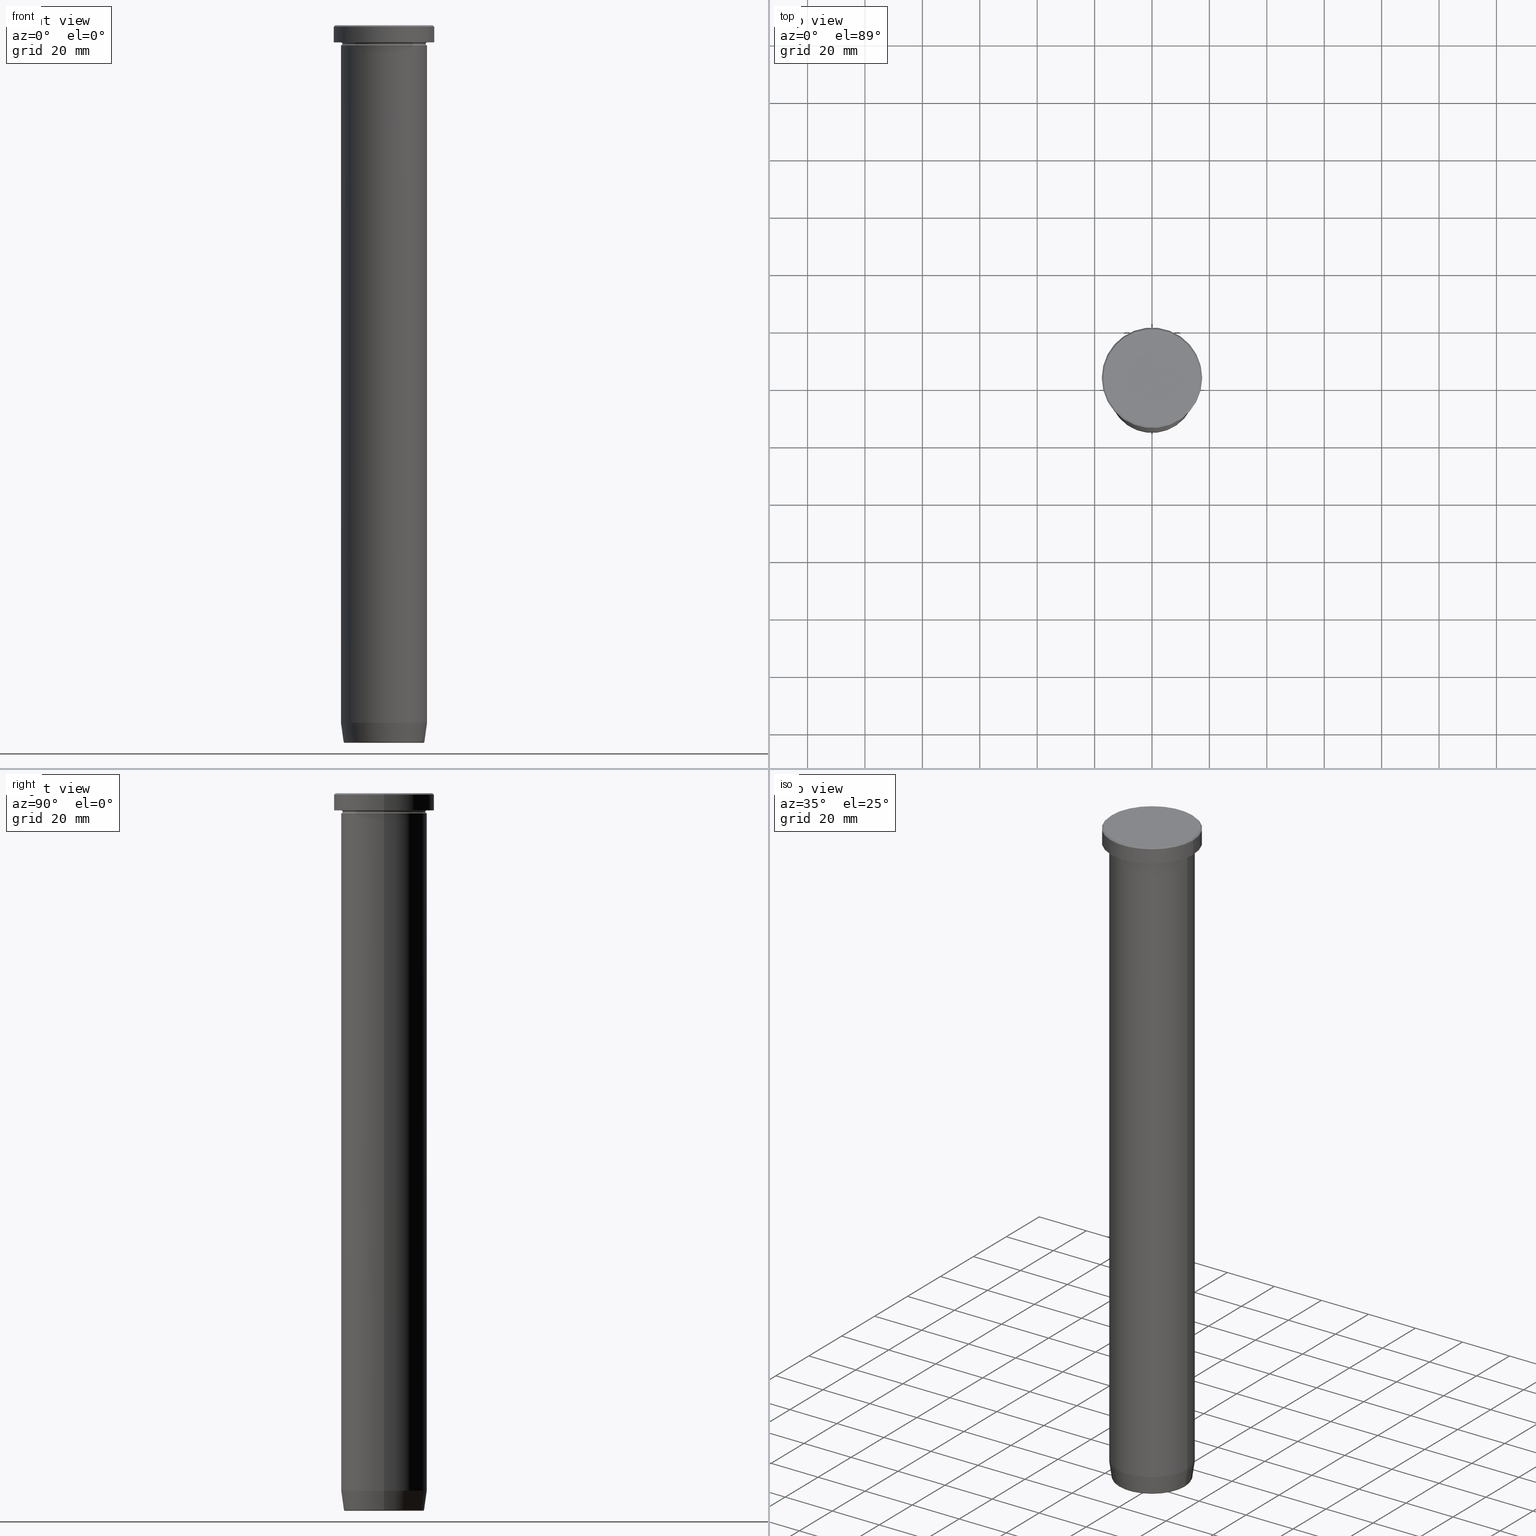
[diagram: canonical four-view strip — front | top / right | iso, engineering-drawing reading convention]
A machine part, canonical four-view strip (front | top / right | iso — engineering-drawing reading convention). The complete STEP part file that produces these views, byte-faithful:
ISO-10303-21;
HEADER;
FILE_DESCRIPTION (( 'STEP AP203' ),
    '1' );
FILE_NAME ('8057.STEP',
    '2024-01-02T17:49:42',
    ( '' ),
    ( '' ),
    'SwSTEP 2.0',
    'SolidWorks 2019',
    '' );
FILE_SCHEMA (( 'CONFIG_CONTROL_DESIGN' ));
ENDSEC;

DATA;
#1 = VECTOR ( 'NONE', #356, 1000.000000000000000 ) ;
#2 = PRODUCT_DEFINITION_FORMATION_WITH_SPECIFIED_SOURCE ( 'LIBOVOLN�', '', #364, .NOT_KNOWN. ) ;
#3 = EDGE_CURVE ( 'NONE', #287, #335, #157, .T. ) ;
#4 = ORIENTED_EDGE ( 'NONE', *, *, #430, .T. ) ;
#5 = FACE_OUTER_BOUND ( 'NONE', #115, .T. ) ;
#6 = FACE_OUTER_BOUND ( 'NONE', #298, .T. ) ;
#7 = DIRECTION ( 'NONE',  ( -0.000000000000000000, -0.000000000000000000, 1.000000000000000000 ) ) ;
#8 = DIRECTION ( 'NONE',  ( 0.000000000000000000, 0.000000000000000000, -1.000000000000000000 ) ) ;
#9 = CARTESIAN_POINT ( 'NONE',  ( 0.000000000000000000, 0.000000000000000000, -249.5000000000000000 ) ) ;
#10 = AXIS2_PLACEMENT_3D ( 'NONE', #431, #29, #205 ) ;
#11 = AXIS2_PLACEMENT_3D ( 'NONE', #405, #366, #176 ) ;
#12 = CARTESIAN_POINT ( 'NONE',  ( 0.000000000000000000, 0.000000000000000000, -6.499999999999999112 ) ) ;
#13 = EDGE_LOOP ( 'NONE', ( #458, #521, #195, #387 ) ) ;
#14 = DIRECTION ( 'NONE',  ( -0.000000000000000000, -0.000000000000000000, 1.000000000000000000 ) ) ;
#15 = PRODUCT_DEFINITION ( 'NEZN�M�', '', #2, #577 ) ;
#16 = DIRECTION ( 'NONE',  ( 1.000000000000000000, 0.000000000000000000, 0.000000000000000000 ) ) ;
#17 = CARTESIAN_POINT ( 'NONE',  ( -15.00000000000000000, 1.836970198721029589E-15, 0.000000000000000000 ) ) ;
#18 = ORIENTED_EDGE ( 'NONE', *, *, #415, .T. ) ;
#19 = FACE_OUTER_BOUND ( 'NONE', #537, .T. ) ;
#20 = ADVANCED_BREP_SHAPE_REPRESENTATION ( '8057', ( #138, #528, #550 ), #417 ) ;
#21 = EDGE_LOOP ( 'NONE', ( #573, #477 ) ) ;
#22 = DIRECTION ( 'NONE',  ( 1.000000000000000000, 0.000000000000000000, 0.000000000000000000 ) ) ;
#23 = ORIENTED_EDGE ( 'NONE', *, *, #91, .F. ) ;
#24 = AXIS2_PLACEMENT_3D ( 'NONE', #390, #344, #525 ) ;
#25 = DIRECTION ( 'NONE',  ( 1.000000000000000000, 0.000000000000000000, 0.000000000000000000 ) ) ;
#26 = CIRCLE ( 'NONE', #98, 0.5000000000000004441 ) ;
#27 = EDGE_LOOP ( 'NONE', ( #469, #555 ) ) ;
#28 = EDGE_CURVE ( 'NONE', #524, #381, #274, .T. ) ;
#29 = DIRECTION ( 'NONE',  ( -0.000000000000000000, -1.000000000000000000, -0.000000000000000000 ) ) ;
#30 = CYLINDRICAL_SURFACE ( 'NONE', #112, 15.00000000000000000 ) ;
#31 = CARTESIAN_POINT ( 'NONE',  ( 0.000000000000000000, 0.000000000000000000, -6.999999999999999112 ) ) ;
#32 = DIRECTION ( 'NONE',  ( 0.1391731009600661317, 0.000000000000000000, 0.9902680687415702510 ) ) ;
#33 = DIRECTION ( 'NONE',  ( 0.000000000000000000, 0.000000000000000000, -1.000000000000000000 ) ) ;
#34 = CARTESIAN_POINT ( 'NONE',  ( 0.000000000000000000, 0.000000000000000000, -250.0000000000000000 ) ) ;
#35 = VECTOR ( 'NONE', #14, 1000.000000000000000 ) ;
#36 = EDGE_LOOP ( 'NONE', ( #210, #384, #512, #435 ) ) ;
#37 = APPROVAL_PERSON_ORGANIZATION ( #369, #466, #58 ) ;
#38 = EDGE_CURVE ( 'NONE', #255, #339, #595, .T. ) ;
#39 = DIRECTION ( 'NONE',  ( -0.000000000000000000, -0.000000000000000000, 1.000000000000000000 ) ) ;
#40 = DATE_AND_TIME ( #564, #275 ) ;
#41 = DIRECTION ( 'NONE',  ( 1.000000000000000000, 0.000000000000000000, 0.000000000000000000 ) ) ;
#42 = CIRCLE ( 'NONE', #24, 14.49999999999999822 ) ;
#43 = EDGE_CURVE ( 'NONE', #339, #255, #508, .T. ) ;
#44 = AXIS2_PLACEMENT_3D ( 'NONE', #258, #451, #531 ) ;
#45 = DIRECTION ( 'NONE',  ( 0.000000000000000000, 0.000000000000000000, -1.000000000000000000 ) ) ;
#46 = EDGE_CURVE ( 'NONE', #59, #444, #391, .T. ) ;
#47 = COORDINATED_UNIVERSAL_TIME_OFFSET ( 1, 0, .AHEAD. ) ;
#48 = TOROIDAL_SURFACE ( 'NONE', #332, 13.58157078817513863, 0.5000000000000000000 ) ;
#49 = CIRCLE ( 'NONE', #370, 14.49999999999999822 ) ;
#50 = AXIS2_PLACEMENT_3D ( 'NONE', #546, #45, #226 ) ;
#51 = CC_DESIGN_PERSON_AND_ORGANIZATION_ASSIGNMENT ( #545, #599, ( #2 ) ) ;
#52 = FACE_OUTER_BOUND ( 'NONE', #300, .T. ) ;
#53 = DIRECTION ( 'NONE',  ( -1.000000000000000000, 0.000000000000000000, 0.000000000000000000 ) ) ;
#54 = DIRECTION ( 'NONE',  ( 1.000000000000000000, 0.000000000000000000, 0.000000000000000000 ) ) ;
#55 = CARTESIAN_POINT ( 'NONE',  ( -14.07670482254592059, 1.780434674534163799E-15, -249.5695865504800679 ) ) ;
#56 = ORIENTED_EDGE ( 'NONE', *, *, #234, .T. ) ;
#57 = EDGE_LOOP ( 'NONE', ( #313, #171 ) ) ;
#58 = APPROVAL_ROLE ( '' ) ;
#59 = VERTEX_POINT ( 'NONE', #439 ) ;
#60 = ADVANCED_FACE ( 'NONE', ( #19 ), #377, .T. ) ;
#61 = VECTOR ( 'NONE', #372, 1000.000000000000000 ) ;
#62 = EDGE_LOOP ( 'NONE', ( #448, #389, #202, #380 ) ) ;
#63 = ORIENTED_EDGE ( 'NONE', *, *, #139, .F. ) ;
#64 = ORIENTED_EDGE ( 'NONE', *, *, #569, .F. ) ;
#65 = ORIENTED_EDGE ( 'NONE', *, *, #183, .T. ) ;
#66 = FACE_OUTER_BOUND ( 'NONE', #78, .T. ) ;
#67 = ADVANCED_FACE ( 'NONE', ( #159 ), #292, .F. ) ;
#68 = CARTESIAN_POINT ( 'NONE',  ( 0.000000000000000000, 0.000000000000000000, -36.00000000000000000 ) ) ;
#69 = DIRECTION ( 'NONE',  ( 0.000000000000000000, 0.000000000000000000, -1.000000000000000000 ) ) ;
#70 = ORIENTED_EDGE ( 'NONE', *, *, #83, .F. ) ;
#71 = DIRECTION ( 'NONE',  ( 1.000000000000000000, 0.000000000000000000, 0.000000000000000000 ) ) ;
#72 = FACE_OUTER_BOUND ( 'NONE', #357, .T. ) ;
#73 = CIRCLE ( 'NONE', #447, 0.5000000000000004441 ) ;
#74 = CARTESIAN_POINT ( 'NONE',  ( 14.01621415708325280, 0.000000000000000000, -250.0000000000000000 ) ) ;
#75 = AXIS2_PLACEMENT_3D ( 'NONE', #427, #8, #185 ) ;
#76 = DIRECTION ( 'NONE',  ( -0.000000000000000000, -0.000000000000000000, 1.000000000000000000 ) ) ;
#77 = DIRECTION ( 'NONE',  ( -0.000000000000000000, -0.000000000000000000, 1.000000000000000000 ) ) ;
#78 = EDGE_LOOP ( 'NONE', ( #118, #346, #288, #82 ) ) ;
#79 = DIRECTION ( 'NONE',  ( 1.000000000000000000, 0.000000000000000000, 0.000000000000000000 ) ) ;
#80 = CARTESIAN_POINT ( 'NONE',  ( 0.000000000000000000, 0.000000000000000000, -243.0000000000000000 ) ) ;
#81 = CARTESIAN_POINT ( 'NONE',  ( 0.000000000000000000, 0.000000000000000000, 0.000000000000000000 ) ) ;
#82 = ORIENTED_EDGE ( 'NONE', *, *, #506, .T. ) ;
#83 = EDGE_CURVE ( 'NONE', #571, #108, #587, .T. ) ;
#84 = AXIS2_PLACEMENT_3D ( 'NONE', #566, #196, #340 ) ;
#85 = CARTESIAN_POINT ( 'NONE',  ( -13.58157078817513863, 1.663262719313187755E-15, -249.5000000000000000 ) ) ;
#86 = AXIS2_PLACEMENT_3D ( 'NONE', #400, #213, #168 ) ;
#87 = DIRECTION ( 'NONE',  ( 1.000000000000000000, 0.000000000000000000, 0.000000000000000000 ) ) ;
#88 = PERSON_AND_ORGANIZATION_ROLE ( 'design_supplier' ) ;
#89 = FACE_OUTER_BOUND ( 'NONE', #247, .T. ) ;
#90 = ORIENTED_EDGE ( 'NONE', *, *, #457, .F. ) ;
#91 = EDGE_CURVE ( 'NONE', #474, #339, #398, .T. ) ;
#92 = AXIS2_PLACEMENT_3D ( 'NONE', #34, #501, #87 ) ;
#93 = APPLICATION_PROTOCOL_DEFINITION ( 'international standard', 'config_control_design', 1994, #578 ) ;
#94 = MECHANICAL_CONTEXT ( 'NONE', #578, 'mechanical' ) ;
#95 = COORDINATED_UNIVERSAL_TIME_OFFSET ( 1, 0, .AHEAD. ) ;
#96 = ADVANCED_FACE ( 'NONE', ( #493 ), #305, .T. ) ;
#97 = AXIS2_PLACEMENT_3D ( 'NONE', #236, #483, #245 ) ;
#98 = AXIS2_PLACEMENT_3D ( 'NONE', #452, #175, #217 ) ;
#99 = DIRECTION ( 'NONE',  ( -0.000000000000000000, -0.000000000000000000, 1.000000000000000000 ) ) ;
#100 = DIRECTION ( 'NONE',  ( -0.000000000000000000, -0.000000000000000000, 1.000000000000000000 ) ) ;
#101 = ORIENTED_EDGE ( 'NONE', *, *, #83, .T. ) ;
#102 = CARTESIAN_POINT ( 'NONE',  ( 0.000000000000000000, 0.000000000000000000, 0.000000000000000000 ) ) ;
#103 = FACE_OUTER_BOUND ( 'NONE', #239, .T. ) ;
#104 = EDGE_CURVE ( 'NONE', #108, #295, #416, .T. ) ;
#105 = ORIENTED_EDGE ( 'NONE', *, *, #211, .T. ) ;
#106 = ORIENTED_EDGE ( 'NONE', *, *, #462, .T. ) ;
#107 = DIRECTION ( 'NONE',  ( -0.000000000000000000, -0.000000000000000000, 1.000000000000000000 ) ) ;
#108 = VERTEX_POINT ( 'NONE', #442 ) ;
#109 = ORIENTED_EDGE ( 'NONE', *, *, #358, .F. ) ;
#110 = CONICAL_SURFACE ( 'NONE', #540, 14.01621415708325280, 0.1396263401595470577 ) ;
#111 = ORIENTED_EDGE ( 'NONE', *, *, #302, .F. ) ;
#112 = AXIS2_PLACEMENT_3D ( 'NONE', #212, #404, #206 ) ;
#113 = FACE_OUTER_BOUND ( 'NONE', #334, .T. ) ;
#114 = ORIENTED_EDGE ( 'NONE', *, *, #302, .T. ) ;
#115 = EDGE_LOOP ( 'NONE', ( #114, #190, #374, #70 ) ) ;
#116 = EDGE_CURVE ( 'NONE', #59, #341, #290, .T. ) ;
#117 = CARTESIAN_POINT ( 'NONE',  ( 0.000000000000000000, 0.000000000000000000, 0.000000000000000000 ) ) ;
#118 = ORIENTED_EDGE ( 'NONE', *, *, #173, .F. ) ;
#119 = APPROVAL ( #187, 'NEUR�EN�' ) ;
#120 = CARTESIAN_POINT ( 'NONE',  ( 0.000000000000000000, 0.000000000000000000, -249.5695865504800679 ) ) ;
#121 = DATE_TIME_ROLE ( 'creation_date' ) ;
#122 = CYLINDRICAL_SURFACE ( 'NONE', #408, 17.50000000000000000 ) ;
#123 = VECTOR ( 'NONE', #395, 1000.000000000000000 ) ;
#124 = CARTESIAN_POINT ( 'NONE',  ( 0.000000000000000000, 0.000000000000000000, -6.499999999999999112 ) ) ;
#125 = DIRECTION ( 'NONE',  ( 1.000000000000000000, 0.000000000000000000, 0.000000000000000000 ) ) ;
#126 = CIRCLE ( 'NONE', #223, 15.00000000000000000 ) ;
#127 = CYLINDRICAL_SURFACE ( 'NONE', #191, 17.50000000000000000 ) ;
#128 = FACE_OUTER_BOUND ( 'NONE', #36, .T. ) ;
#129 = ORIENTED_EDGE ( 'NONE', *, *, #553, .F. ) ;
#130 = EDGE_CURVE ( 'NONE', #381, #355, #189, .T. ) ;
#131 = DIRECTION ( 'NONE',  ( -0.000000000000000000, -0.000000000000000000, 1.000000000000000000 ) ) ;
#132 = CARTESIAN_POINT ( 'NONE',  ( 13.58157078817513863, 0.000000000000000000, -249.5000000000000000 ) ) ;
#133 = CARTESIAN_POINT ( 'NONE',  ( 0.000000000000000000, 0.000000000000000000, -0.5000000000000073275 ) ) ;
#134 = AXIS2_PLACEMENT_3D ( 'NONE', #385, #575, #567 ) ;
#135 = DATE_AND_TIME ( #503, #316 ) ;
#136 = LOCAL_TIME ( 18, 49, 42.00000000000000000, #363 ) ;
#137 = ORIENTED_EDGE ( 'NONE', *, *, #28, .T. ) ;
#138 = MANIFOLD_SOLID_BREP ( 'Zkosen�1', #160 ) ;
#139 = EDGE_CURVE ( 'NONE', #443, #255, #570, .T. ) ;
#140 = PERSON_AND_ORGANIZATION ( #371, #534 ) ;
#141 =( LENGTH_UNIT ( ) NAMED_UNIT ( * ) SI_UNIT ( .MILLI., .METRE. ) );
#142 = SHAPE_DEFINITION_REPRESENTATION ( #593, #20 ) ;
#143 = DIRECTION ( 'NONE',  ( -1.000000000000000000, -1.224646799147349509E-16, 0.000000000000000000 ) ) ;
#144 = VECTOR ( 'NONE', #166, 1000.000000000000000 ) ;
#145 = DATE_AND_TIME ( #470, #361 ) ;
#146 = PERSON_AND_ORGANIZATION ( #371, #534 ) ;
#147 = ADVANCED_FACE ( 'NONE', ( #6 ), #209, .T. ) ;
#148 = ORIENTED_EDGE ( 'NONE', *, *, #500, .F. ) ;
#149 = ORIENTED_EDGE ( 'NONE', *, *, #280, .F. ) ;
#150 = CIRCLE ( 'NONE', #269, 15.00000000000000000 ) ;
#151 = DIRECTION ( 'NONE',  ( -0.000000000000000000, -0.000000000000000000, 1.000000000000000000 ) ) ;
#152 = SECURITY_CLASSIFICATION ( '', '', #507 ) ;
#153 = ADVANCED_FACE ( 'NONE', ( #128 ), #48, .T. ) ;
#154 = ORIENTED_EDGE ( 'NONE', *, *, #177, .T. ) ;
#155 = CARTESIAN_POINT ( 'NONE',  ( 13.58157078817513863, 0.000000000000000000, -250.0000000000000000 ) ) ;
#156 = EDGE_LOOP ( 'NONE', ( #299, #106, #90, #561 ) ) ;
#157 = LINE ( 'NONE', #436, #35 ) ;
#158 = CC_DESIGN_DATE_AND_TIME_ASSIGNMENT ( #145, #121, ( #15 ) ) ;
#159 = FACE_OUTER_BOUND ( 'NONE', #284, .T. ) ;
#160 = CLOSED_SHELL ( 'NONE', ( #338, #475, #67, #494, #188, #393, #147, #314, #582, #293, #365, #598, #96 ) ) ;
#161 = AXIS2_PLACEMENT_3D ( 'NONE', #102, #7, #285 ) ;
#162 = CIRCLE ( 'NONE', #465, 13.58157078817513863 ) ;
#163 = ORIENTED_EDGE ( 'NONE', *, *, #139, .T. ) ;
#164 = DIRECTION ( 'NONE',  ( 0.000000000000000000, 0.000000000000000000, 1.000000000000000000 ) ) ;
#165 = CC_DESIGN_PERSON_AND_ORGANIZATION_ASSIGNMENT ( #146, #88, ( #2 ) ) ;
#166 = DIRECTION ( 'NONE',  ( -0.000000000000000000, -0.000000000000000000, 1.000000000000000000 ) ) ;
#167 = DIRECTION ( 'NONE',  ( -0.000000000000000000, -0.000000000000000000, 1.000000000000000000 ) ) ;
#168 = DIRECTION ( 'NONE',  ( -1.000000000000000000, 0.000000000000000000, 0.000000000000000000 ) ) ;
#169 = DIRECTION ( 'NONE',  ( -1.000000000000000000, 0.000000000000000000, -0.000000000000000000 ) ) ;
#170 = CARTESIAN_POINT ( 'NONE',  ( -15.00000000000000000, 1.836970198721029589E-15, -6.499999999999999112 ) ) ;
#171 = ORIENTED_EDGE ( 'NONE', *, *, #441, .F. ) ;
#172 = CONICAL_SURFACE ( 'NONE', #86, 17.00000000000000000, 0.7853981633974415066 ) ;
#173 = EDGE_CURVE ( 'NONE', #482, #355, #588, .T. ) ;
#174 = APPROVAL_PERSON_ORGANIZATION ( #414, #373, #321 ) ;
#175 = DIRECTION ( 'NONE',  ( 0.000000000000000000, -1.000000000000000000, 0.000000000000000000 ) ) ;
#176 = DIRECTION ( 'NONE',  ( 1.000000000000000000, 0.000000000000000000, 0.000000000000000000 ) ) ;
#177 = EDGE_CURVE ( 'NONE', #571, #341, #73, .T. ) ;
#178 = APPROVAL_DATE_TIME ( #135, #373 ) ;
#179 = TOROIDAL_SURFACE ( 'NONE', #378, 15.00000000000000000, 0.5000000000000000000 ) ;
#180 = DIRECTION ( 'NONE',  ( 1.000000000000000000, 0.000000000000000000, 0.000000000000000000 ) ) ;
#181 =( NAMED_UNIT ( * ) PLANE_ANGLE_UNIT ( ) SI_UNIT ( $, .RADIAN. ) );
#182 = APPROVAL_DATE_TIME ( #229, #119 ) ;
#183 = EDGE_CURVE ( 'NONE', #192, #392, #498, .T. ) ;
#184 = APPLICATION_PROTOCOL_DEFINITION ( 'international standard', 'config_control_design', 1994, #329 ) ;
#185 = DIRECTION ( 'NONE',  ( -1.000000000000000000, 0.000000000000000000, -0.000000000000000000 ) ) ;
#186 = AXIS2_PLACEMENT_3D ( 'NONE', #124, #33, #464 ) ;
#187 = APPROVAL_STATUS ( 'not_yet_approved' ) ;
#188 = ADVANCED_FACE ( 'NONE', ( #254 ), #122, .T. ) ;
#189 = LINE ( 'NONE', #386, #576 ) ;
#190 = ORIENTED_EDGE ( 'NONE', *, *, #246, .T. ) ;
#191 = AXIS2_PLACEMENT_3D ( 'NONE', #410, #590, #79 ) ;
#192 = VERTEX_POINT ( 'NONE', #402 ) ;
#193 = CIRCLE ( 'NONE', #589, 14.07670482254592059 ) ;
#194 = DIRECTION ( 'NONE',  ( 1.000000000000000000, 0.000000000000000000, 0.000000000000000000 ) ) ;
#195 = ORIENTED_EDGE ( 'NONE', *, *, #130, .T. ) ;
#196 = DIRECTION ( 'NONE',  ( -0.000000000000000000, -0.000000000000000000, 1.000000000000000000 ) ) ;
#197 = DIRECTION ( 'NONE',  ( -0.000000000000000000, -0.000000000000000000, 1.000000000000000000 ) ) ;
#198 = ORIENTED_EDGE ( 'NONE', *, *, #177, .F. ) ;
#199 = ORIENTED_EDGE ( 'NONE', *, *, #276, .T. ) ;
#200 = CARTESIAN_POINT ( 'NONE',  ( 15.00000000000000000, 1.836970198721029589E-15, -5.999999999999998224 ) ) ;
#201 = EDGE_CURVE ( 'NONE', #443, #474, #230, .T. ) ;
#202 = ORIENTED_EDGE ( 'NONE', *, *, #457, .T. ) ;
#203 = APPROVAL_PERSON_ORGANIZATION ( #277, #119, #418 ) ;
#204 = CARTESIAN_POINT ( 'NONE',  ( 15.00000000000000000, 0.000000000000000000, 0.000000000000000000 ) ) ;
#205 = DIRECTION ( 'NONE',  ( 0.000000000000000000, 0.000000000000000000, -1.000000000000000000 ) ) ;
#206 = DIRECTION ( 'NONE',  ( 1.000000000000000000, 0.000000000000000000, 0.000000000000000000 ) ) ;
#207 = FACE_OUTER_BOUND ( 'NONE', #156, .T. ) ;
#208 = DIRECTION ( 'NONE',  ( 1.000000000000000000, 0.000000000000000000, 0.000000000000000000 ) ) ;
#209 = PLANE ( 'NONE',  #222 ) ;
#210 = ORIENTED_EDGE ( 'NONE', *, *, #183, .F. ) ;
#211 = EDGE_CURVE ( 'NONE', #392, #443, #496, .T. ) ;
#212 = CARTESIAN_POINT ( 'NONE',  ( 0.000000000000000000, 0.000000000000000000, 0.000000000000000000 ) ) ;
#213 = DIRECTION ( 'NONE',  ( 0.000000000000000000, 0.000000000000000000, -1.000000000000000000 ) ) ;
#214 = CARTESIAN_POINT ( 'NONE',  ( -15.00000000000000000, 1.836970198721029589E-15, -243.0000000000000000 ) ) ;
#215 = AXIS2_PLACEMENT_3D ( 'NONE', #31, #412, #208 ) ;
#216 = DIRECTION ( 'NONE',  ( 1.000000000000000000, 0.000000000000000000, 0.000000000000000000 ) ) ;
#217 = DIRECTION ( 'NONE',  ( 0.000000000000000000, 0.000000000000000000, -1.000000000000000000 ) ) ;
#218 = ADVANCED_FACE ( 'NONE', ( #279 ), #502, .T. ) ;
#219 = DIRECTION ( 'NONE',  ( -0.1391731009600661317, 1.704378926181564302E-17, 0.9902680687415702510 ) ) ;
#220 = APPROVAL_DATE_TIME ( #40, #466 ) ;
#221 = DIRECTION ( 'NONE',  ( -0.000000000000000000, -0.000000000000000000, 1.000000000000000000 ) ) ;
#222 = AXIS2_PLACEMENT_3D ( 'NONE', #117, #407, #216 ) ;
#223 = AXIS2_PLACEMENT_3D ( 'NONE', #399, #167, #586 ) ;
#224 = CYLINDRICAL_SURFACE ( 'NONE', #367, 15.00000000000000000 ) ;
#225 = ADVANCED_FACE ( 'NONE', ( #89 ), #110, .T. ) ;
#226 = DIRECTION ( 'NONE',  ( 1.000000000000000000, 0.000000000000000000, 0.000000000000000000 ) ) ;
#227 = PERSON_AND_ORGANIZATION_ROLE ( 'design_owner' ) ;
#228 = CLOSED_SHELL ( 'NONE', ( #60, #225, #218, #411, #263, #347, #530, #153 ) ) ;
#229 = DATE_AND_TIME ( #273, #449 ) ;
#230 = CIRCLE ( 'NONE', #471, 15.00000000000000000 ) ;
#231 = CARTESIAN_POINT ( 'NONE',  ( 0.000000000000000000, 0.000000000000000000, 0.000000000000000000 ) ) ;
#232 = AXIS2_PLACEMENT_3D ( 'NONE', #562, #250, #301 ) ;
#233 = AXIS2_PLACEMENT_3D ( 'NONE', #584, #532, #125 ) ;
#234 = EDGE_CURVE ( 'NONE', #381, #524, #459, .T. ) ;
#235 = ORIENTED_EDGE ( 'NONE', *, *, #246, .F. ) ;
#236 = CARTESIAN_POINT ( 'NONE',  ( 0.000000000000000000, 0.000000000000000000, -36.00000000000000000 ) ) ;
#237 = DIRECTION ( 'NONE',  ( -1.000000000000000000, 0.000000000000000000, 0.000000000000000000 ) ) ;
#238 = FACE_OUTER_BOUND ( 'NONE', #251, .T. ) ;
#239 = EDGE_LOOP ( 'NONE', ( #429, #319 ) ) ;
#240 = VECTOR ( 'NONE', #197, 1000.000000000000000 ) ;
#241 = ORIENTED_EDGE ( 'NONE', *, *, #46, .T. ) ;
#242 = CIRCLE ( 'NONE', #92, 13.58157078817513863 ) ;
#243 = DIRECTION ( 'NONE',  ( 1.000000000000000000, 0.000000000000000000, 0.000000000000000000 ) ) ;
#244 = ORIENTED_EDGE ( 'NONE', *, *, #421, .F. ) ;
#245 = DIRECTION ( 'NONE',  ( 1.000000000000000000, 0.000000000000000000, 0.000000000000000000 ) ) ;
#246 = EDGE_CURVE ( 'NONE', #485, #295, #315, .T. ) ;
#247 = EDGE_LOOP ( 'NONE', ( #18, #105, #148, #337 ) ) ;
#248 = CARTESIAN_POINT ( 'NONE',  ( 0.000000000000000000, 0.000000000000000000, 0.000000000000000000 ) ) ;
#249 = ORIENTED_EDGE ( 'NONE', *, *, #553, .T. ) ;
#250 = DIRECTION ( 'NONE',  ( -0.000000000000000000, -0.000000000000000000, 1.000000000000000000 ) ) ;
#251 = EDGE_LOOP ( 'NONE', ( #424, #476 ) ) ;
#252 = DIRECTION ( 'NONE',  ( -0.000000000000000000, -0.000000000000000000, 1.000000000000000000 ) ) ;
#253 = FACE_OUTER_BOUND ( 'NONE', #454, .T. ) ;
#254 = FACE_OUTER_BOUND ( 'NONE', #62, .T. ) ;
#255 = VERTEX_POINT ( 'NONE', #383 ) ;
#256 = CIRCLE ( 'NONE', #409, 15.00000000000000000 ) ;
#257 = VERTEX_POINT ( 'NONE', #155 ) ;
#258 = CARTESIAN_POINT ( 'NONE',  ( 0.000000000000000000, 0.000000000000000000, -5.999999999999999112 ) ) ;
#259 = PLANE ( 'NONE',  #596 ) ;
#260 = DIRECTION ( 'NONE',  ( 0.000000000000000000, 0.000000000000000000, -1.000000000000000000 ) ) ;
#261 = DIRECTION ( 'NONE',  ( 1.000000000000000000, 0.000000000000000000, 0.000000000000000000 ) ) ;
#262 = ORIENTED_EDGE ( 'NONE', *, *, #569, .T. ) ;
#263 = ADVANCED_FACE ( 'NONE', ( #327 ), #224, .T. ) ;
#264 = CARTESIAN_POINT ( 'NONE',  ( 0.000000000000000000, 0.000000000000000000, 0.000000000000000000 ) ) ;
#265 = FACE_OUTER_BOUND ( 'NONE', #426, .T. ) ;
#266 = CARTESIAN_POINT ( 'NONE',  ( 14.07670482254592059, 0.000000000000000000, -249.5695865504800679 ) ) ;
#267 = ORIENTED_EDGE ( 'NONE', *, *, #358, .T. ) ;
#268 = CC_DESIGN_PERSON_AND_ORGANIZATION_ASSIGNMENT ( #403, #527, ( #15 ) ) ;
#269 = AXIS2_PLACEMENT_3D ( 'NONE', #289, #480, #16 ) ;
#270 = CIRCLE ( 'NONE', #472, 0.5000000000000004441 ) ;
#271 = CC_DESIGN_DATE_AND_TIME_ASSIGNMENT ( #467, #594, ( #152 ) ) ;
#272 = CARTESIAN_POINT ( 'NONE',  ( 17.00000000000000000, 2.112515728529184067E-15, 0.000000000000000000 ) ) ;
#273 = CALENDAR_DATE ( 2024, 2, 1 ) ;
#274 = CIRCLE ( 'NONE', #161, 17.00000000000000000 ) ;
#275 = LOCAL_TIME ( 18, 49, 42.00000000000000000, #434 ) ;
#276 = EDGE_CURVE ( 'NONE', #444, #59, #150, .T. ) ;
#277 = PERSON_AND_ORGANIZATION ( #371, #534 ) ;
#278 = CARTESIAN_POINT ( 'NONE',  ( 15.00000000000000000, 0.000000000000000000, -6.999999999999999112 ) ) ;
#279 = FACE_OUTER_BOUND ( 'NONE', #526, .T. ) ;
#280 = EDGE_CURVE ( 'NONE', #295, #108, #420, .T. ) ;
#281 = AXIS2_PLACEMENT_3D ( 'NONE', #548, #484, #143 ) ;
#282 = ORIENTED_EDGE ( 'NONE', *, *, #116, .F. ) ;
#283 = DIRECTION ( 'NONE',  ( 1.000000000000000000, 0.000000000000000000, 0.000000000000000000 ) ) ;
#284 = EDGE_LOOP ( 'NONE', ( #111, #154, #267, #129 ) ) ;
#285 = DIRECTION ( 'NONE',  ( 1.000000000000000000, 0.000000000000000000, 0.000000000000000000 ) ) ;
#286 = CARTESIAN_POINT ( 'NONE',  ( -17.00000000000000000, 0.000000000000000000, 0.000000000000000000 ) ) ;
#287 = VERTEX_POINT ( 'NONE', #517 ) ;
#288 = ORIENTED_EDGE ( 'NONE', *, *, #3, .T. ) ;
#289 = CARTESIAN_POINT ( 'NONE',  ( 0.000000000000000000, 0.000000000000000000, -36.00000000000000000 ) ) ;
#290 = LINE ( 'NONE', #17, #240 ) ;
#291 = ORIENTED_EDGE ( 'NONE', *, *, #415, .F. ) ;
#292 = TOROIDAL_SURFACE ( 'NONE', #232, 15.00000000000000000, 0.5000000000000000000 ) ;
#293 = ADVANCED_FACE ( 'NONE', ( #113 ), #296, .T. ) ;
#294 = CARTESIAN_POINT ( 'NONE',  ( 0.000000000000000000, 0.000000000000000000, -36.00000000000000000 ) ) ;
#295 = VERTEX_POINT ( 'NONE', #200 ) ;
#296 = CYLINDRICAL_SURFACE ( 'NONE', #491, 15.00000000000000000 ) ;
#297 = CARTESIAN_POINT ( 'NONE',  ( 0.000000000000000000, 17.50000000000000000, -5.999999999999999112 ) ) ;
#298 = EDGE_LOOP ( 'NONE', ( #56, #137 ) ) ;
#299 = ORIENTED_EDGE ( 'NONE', *, *, #28, .F. ) ;
#300 = EDGE_LOOP ( 'NONE', ( #198, #375, #249, #262 ) ) ;
#301 = DIRECTION ( 'NONE',  ( 1.000000000000000000, 0.000000000000000000, 0.000000000000000000 ) ) ;
#302 = EDGE_CURVE ( 'NONE', #571, #485, #42, .T. ) ;
#303 = LINE ( 'NONE', #74, #492 ) ;
#304 = DIRECTION ( 'NONE',  ( -0.000000000000000000, -0.000000000000000000, 1.000000000000000000 ) ) ;
#305 = CONICAL_SURFACE ( 'NONE', #325, 17.00000000000000000, 0.7853981633974415066 ) ;
#306 = CC_DESIGN_SECURITY_CLASSIFICATION ( #152, ( #2 ) ) ;
#307 = PLANE ( 'NONE',  #432 ) ;
#308 = DIRECTION ( 'NONE',  ( 1.000000000000000000, 0.000000000000000000, 0.000000000000000000 ) ) ;
#309 = ORIENTED_EDGE ( 'NONE', *, *, #116, .T. ) ;
#310 = ORIENTED_EDGE ( 'NONE', *, *, #544, .F. ) ;
#311 = DIRECTION ( 'NONE',  ( 1.000000000000000000, 0.000000000000000000, 0.000000000000000000 ) ) ;
#312 = CARTESIAN_POINT ( 'NONE',  ( 0.000000000000000000, 0.000000000000000000, -249.5000000000000000 ) ) ;
#313 = ORIENTED_EDGE ( 'NONE', *, *, #328, .F. ) ;
#314 = ADVANCED_FACE ( 'NONE', ( #66 ), #127, .T. ) ;
#315 = CIRCLE ( 'NONE', #281, 0.5000000000000004441 ) ;
#316 = LOCAL_TIME ( 18, 49, 42.00000000000000000, #95 ) ;
#317 = DIRECTION ( 'NONE',  ( 0.000000000000000000, 0.000000000000000000, -1.000000000000000000 ) ) ;
#318 = CIRCLE ( 'NONE', #499, 17.50000000000000000 ) ;
#319 = ORIENTED_EDGE ( 'NONE', *, *, #46, .F. ) ;
#320 = COORDINATED_UNIVERSAL_TIME_OFFSET ( 1, 0, .AHEAD. ) ;
#321 = APPROVAL_ROLE ( '' ) ;
#322 = CARTESIAN_POINT ( 'NONE',  ( 0.000000000000000000, 0.000000000000000000, -250.0000000000000000 ) ) ;
#323 = EDGE_CURVE ( 'NONE', #444, #478, #445, .T. ) ;
#324 = CALENDAR_DATE ( 2024, 2, 1 ) ;
#325 = AXIS2_PLACEMENT_3D ( 'NONE', #264, #433, #473 ) ;
#326 = CIRCLE ( 'NONE', #215, 15.00000000000000000 ) ;
#327 = FACE_OUTER_BOUND ( 'NONE', #456, .T. ) ;
#328 = EDGE_CURVE ( 'NONE', #287, #482, #533, .T. ) ;
#329 = APPLICATION_CONTEXT ( 'configuration controlled 3d designs of mechanical parts and assemblies' ) ;
#330 = DIRECTION ( 'NONE',  ( -0.000000000000000000, -0.000000000000000000, 1.000000000000000000 ) ) ;
#331 = FACE_BOUND ( 'NONE', #27, .T. ) ;
#332 = AXIS2_PLACEMENT_3D ( 'NONE', #312, #39, #311 ) ;
#333 = AXIS2_PLACEMENT_3D ( 'NONE', #12, #583, #237 ) ;
#334 = EDGE_LOOP ( 'NONE', ( #282, #241, #535, #109 ) ) ;
#335 = VERTEX_POINT ( 'NONE', #489 ) ;
#336 = CARTESIAN_POINT ( 'NONE',  ( 0.000000000000000000, 0.000000000000000000, -6.999999999999999112 ) ) ;
#337 = ORIENTED_EDGE ( 'NONE', *, *, #430, .F. ) ;
#338 = ADVANCED_FACE ( 'NONE', ( #207 ), #172, .T. ) ;
#339 = VERTEX_POINT ( 'NONE', #351 ) ;
#340 = DIRECTION ( 'NONE',  ( 1.000000000000000000, 0.000000000000000000, 0.000000000000000000 ) ) ;
#341 = VERTEX_POINT ( 'NONE', #529 ) ;
#342 = AXIS2_PLACEMENT_3D ( 'NONE', #294, #151, #54 ) ;
#343 = CIRCLE ( 'NONE', #44, 17.50000000000000000 ) ;
#344 = DIRECTION ( 'NONE',  ( -0.000000000000000000, -0.000000000000000000, 1.000000000000000000 ) ) ;
#345 = FACE_OUTER_BOUND ( 'NONE', #57, .T. ) ;
#346 = ORIENTED_EDGE ( 'NONE', *, *, #441, .T. ) ;
#347 = ADVANCED_FACE ( 'NONE', ( #265 ), #354, .T. ) ;
#348 = CARTESIAN_POINT ( 'NONE',  ( -17.50000000000000000, 2.143131898507868248E-15, -5.999999999999999112 ) ) ;
#349 = DIRECTION ( 'NONE',  ( 1.000000000000000000, 0.000000000000000000, 0.000000000000000000 ) ) ;
#350 = DIRECTION ( 'NONE',  ( 1.224646799147353207E-16, 1.000000000000000000, 0.000000000000000000 ) ) ;
#351 = CARTESIAN_POINT ( 'NONE',  ( 15.00000000000000000, 0.000000000000000000, -36.00000000000000000 ) ) ;
#352 = DIRECTION ( 'NONE',  ( -1.000000000000000000, 1.224646799147349509E-16, 0.000000000000000000 ) ) ;
#353 = AXIS2_PLACEMENT_3D ( 'NONE', #579, #131, #349 ) ;
#354 = CONICAL_SURFACE ( 'NONE', #11, 14.01621415708325280, 0.1396263401595470577 ) ;
#355 = VERTEX_POINT ( 'NONE', #359 ) ;
#356 = DIRECTION ( 'NONE',  ( -0.000000000000000000, -0.000000000000000000, 1.000000000000000000 ) ) ;
#357 = EDGE_LOOP ( 'NONE', ( #199, #309, #64, #556 ) ) ;
#358 = EDGE_CURVE ( 'NONE', #341, #478, #256, .T. ) ;
#359 = CARTESIAN_POINT ( 'NONE',  ( -17.50000000000000000, 2.143131898507868248E-15, -0.5000000000000073275 ) ) ;
#360 = AXIS2_PLACEMENT_3D ( 'NONE', #468, #543, #591 ) ;
#361 = LOCAL_TIME ( 18, 49, 42.00000000000000000, #320 ) ;
#362 = FACE_OUTER_BOUND ( 'NONE', #21, .T. ) ;
#363 = COORDINATED_UNIVERSAL_TIME_OFFSET ( 1, 0, .AHEAD. ) ;
#364 = PRODUCT ( '8057', '8057', '', ( #94 ) ) ;
#365 = ADVANCED_FACE ( 'NONE', ( #52 ), #179, .F. ) ;
#366 = DIRECTION ( 'NONE',  ( -0.000000000000000000, -0.000000000000000000, 1.000000000000000000 ) ) ;
#367 = AXIS2_PLACEMENT_3D ( 'NONE', #515, #107, #437 ) ;
#368 = CARTESIAN_POINT ( 'NONE',  ( 17.00000000000000000, 2.081899558550500280E-15, 0.000000000000000000 ) ) ;
#369 = PERSON_AND_ORGANIZATION ( #371, #534 ) ;
#370 = AXIS2_PLACEMENT_3D ( 'NONE', #563, #511, #243 ) ;
#371 = PERSON ( 'NEUR�EN�', 'NEUR�EN�', 'NEUR�EN�', ('NEUR�EN�'), ('NEUR�EN�'), ('NEUR�EN�') ) ;
#372 = DIRECTION ( 'NONE',  ( 0.7071067811865426878, 8.659560562354874926E-17, -0.7071067811865524577 ) ) ;
#373 = APPROVAL ( #551, 'NEUR�EN�' ) ;
#374 = ORIENTED_EDGE ( 'NONE', *, *, #104, .F. ) ;
#375 = ORIENTED_EDGE ( 'NONE', *, *, #382, .F. ) ;
#376 = CARTESIAN_POINT ( 'NONE',  ( 0.000000000000000000, 0.000000000000000000, -6.499999999999999112 ) ) ;
#377 = TOROIDAL_SURFACE ( 'NONE', #463, 13.58157078817513863, 0.5000000000000000000 ) ;
#378 = AXIS2_PLACEMENT_3D ( 'NONE', #376, #99, #283 ) ;
#379 = APPROVAL_STATUS ( 'not_yet_approved' ) ;
#380 = ORIENTED_EDGE ( 'NONE', *, *, #3, .F. ) ;
#381 = VERTEX_POINT ( 'NONE', #286 ) ;
#382 = EDGE_CURVE ( 'NONE', #485, #571, #49, .T. ) ;
#383 = CARTESIAN_POINT ( 'NONE',  ( -15.00000000000000000, 1.836970198721029589E-15, -36.00000000000000000 ) ) ;
#384 = ORIENTED_EDGE ( 'NONE', *, *, #509, .F. ) ;
#385 = CARTESIAN_POINT ( 'NONE',  ( 0.000000000000000000, 0.000000000000000000, -5.999999999999999112 ) ) ;
#386 = CARTESIAN_POINT ( 'NONE',  ( -17.00000000000000000, 0.000000000000000000, 0.000000000000000000 ) ) ;
#387 = ORIENTED_EDGE ( 'NONE', *, *, #506, .F. ) ;
#388 = DIRECTION ( 'NONE',  ( -0.000000000000000000, -0.000000000000000000, 1.000000000000000000 ) ) ;
#389 = ORIENTED_EDGE ( 'NONE', *, *, #173, .T. ) ;
#390 = CARTESIAN_POINT ( 'NONE',  ( 0.000000000000000000, 0.000000000000000000, -6.499999999999999112 ) ) ;
#391 = CIRCLE ( 'NONE', #97, 15.00000000000000000 ) ;
#392 = VERTEX_POINT ( 'NONE', #55 ) ;
#393 = ADVANCED_FACE ( 'NONE', ( #103 ), #559, .T. ) ;
#394 = CC_DESIGN_APPROVAL ( #373, ( #2 ) ) ;
#395 = DIRECTION ( 'NONE',  ( -0.000000000000000000, -0.000000000000000000, 1.000000000000000000 ) ) ;
#396 = DIRECTION ( 'NONE',  ( -1.000000000000000000, 1.224646799147353454E-16, 0.000000000000000000 ) ) ;
#397 = PRODUCT_RELATED_PRODUCT_CATEGORY ( 'detail', '', ( #364 ) ) ;
#398 = LINE ( 'NONE', #581, #144 ) ;
#399 = CARTESIAN_POINT ( 'NONE',  ( 0.000000000000000000, 0.000000000000000000, -243.0000000000000000 ) ) ;
#400 = CARTESIAN_POINT ( 'NONE',  ( 0.000000000000000000, 0.000000000000000000, 0.000000000000000000 ) ) ;
#401 = DIRECTION ( 'NONE',  ( -1.000000000000000000, 0.000000000000000000, 0.000000000000000000 ) ) ;
#402 = CARTESIAN_POINT ( 'NONE',  ( -13.58157078817513863, 1.693580934830242487E-15, -250.0000000000000000 ) ) ;
#403 = PERSON_AND_ORGANIZATION ( #371, #534 ) ;
#404 = DIRECTION ( 'NONE',  ( -0.000000000000000000, -0.000000000000000000, 1.000000000000000000 ) ) ;
#405 = CARTESIAN_POINT ( 'NONE',  ( 0.000000000000000000, 0.000000000000000000, -250.0000000000000000 ) ) ;
#406 = CARTESIAN_POINT ( 'NONE',  ( 15.00000000000000000, 0.000000000000000000, -36.00000000000000000 ) ) ;
#407 = DIRECTION ( 'NONE',  ( 0.000000000000000000, -0.000000000000000000, 1.000000000000000000 ) ) ;
#408 = AXIS2_PLACEMENT_3D ( 'NONE', #461, #304, #308 ) ;
#409 = AXIS2_PLACEMENT_3D ( 'NONE', #336, #330, #554 ) ;
#410 = CARTESIAN_POINT ( 'NONE',  ( 0.000000000000000000, 0.000000000000000000, 0.000000000000000000 ) ) ;
#411 = ADVANCED_FACE ( 'NONE', ( #238 ), #307, .F. ) ;
#412 = DIRECTION ( 'NONE',  ( -0.000000000000000000, -0.000000000000000000, 1.000000000000000000 ) ) ;
#413 = ORIENTED_EDGE ( 'NONE', *, *, #91, .T. ) ;
#414 = PERSON_AND_ORGANIZATION ( #371, #534 ) ;
#415 = EDGE_CURVE ( 'NONE', #514, #392, #422, .T. ) ;
#416 = CIRCLE ( 'NONE', #518, 15.00000000000000000 ) ;
#417 =( GEOMETRIC_REPRESENTATION_CONTEXT ( 3 ) GLOBAL_UNCERTAINTY_ASSIGNED_CONTEXT ( ( #522 ) ) GLOBAL_UNIT_ASSIGNED_CONTEXT ( ( #141, #181, #538 ) ) REPRESENTATION_CONTEXT ( 'NONE', 'WORKASPACE' ) );
#418 = APPROVAL_ROLE ( '' ) ;
#419 = LINE ( 'NONE', #368, #61 ) ;
#420 = CIRCLE ( 'NONE', #134, 15.00000000000000000 ) ;
#421 = EDGE_CURVE ( 'NONE', #192, #257, #162, .T. ) ;
#422 = CIRCLE ( 'NONE', #505, 14.07670482254592059 ) ;
#423 = DIRECTION ( 'NONE',  ( -0.000000000000000000, -0.000000000000000000, 1.000000000000000000 ) ) ;
#424 = ORIENTED_EDGE ( 'NONE', *, *, #43, .T. ) ;
#425 = DIRECTION ( 'NONE',  ( -0.000000000000000000, -0.000000000000000000, 1.000000000000000000 ) ) ;
#426 = EDGE_LOOP ( 'NONE', ( #516, #487, #4, #479 ) ) ;
#427 = CARTESIAN_POINT ( 'NONE',  ( 0.000000000000000000, 15.00000000000000000, -36.00000000000000000 ) ) ;
#428 = CARTESIAN_POINT ( 'NONE',  ( 0.000000000000000000, 0.000000000000000000, -5.999999999999999112 ) ) ;
#429 = ORIENTED_EDGE ( 'NONE', *, *, #276, .F. ) ;
#430 = EDGE_CURVE ( 'NONE', #514, #474, #303, .T. ) ;
#431 = CARTESIAN_POINT ( 'NONE',  ( -15.00000000000000000, 0.000000000000000000, -6.499999999999999112 ) ) ;
#432 = AXIS2_PLACEMENT_3D ( 'NONE', #68, #580, #568 ) ;
#433 = DIRECTION ( 'NONE',  ( 0.000000000000000000, 0.000000000000000000, -1.000000000000000000 ) ) ;
#434 = COORDINATED_UNIVERSAL_TIME_OFFSET ( 1, 0, .AHEAD. ) ;
#435 = ORIENTED_EDGE ( 'NONE', *, *, #539, .F. ) ;
#436 = CARTESIAN_POINT ( 'NONE',  ( 17.50000000000000000, 0.000000000000000000, 0.000000000000000000 ) ) ;
#437 = DIRECTION ( 'NONE',  ( 1.000000000000000000, 0.000000000000000000, 0.000000000000000000 ) ) ;
#438 = ORIENTED_EDGE ( 'NONE', *, *, #201, .T. ) ;
#439 = CARTESIAN_POINT ( 'NONE',  ( -15.00000000000000000, 1.836970198721029589E-15, -36.00000000000000000 ) ) ;
#440 = DIRECTION ( 'NONE',  ( -0.000000000000000000, -0.000000000000000000, 1.000000000000000000 ) ) ;
#441 = EDGE_CURVE ( 'NONE', #482, #287, #343, .T. ) ;
#442 = CARTESIAN_POINT ( 'NONE',  ( -15.00000000000000000, 0.000000000000000000, -5.999999999999998224 ) ) ;
#443 = VERTEX_POINT ( 'NONE', #214 ) ;
#444 = VERTEX_POINT ( 'NONE', #406 ) ;
#445 = LINE ( 'NONE', #204, #123 ) ;
#446 = CARTESIAN_POINT ( 'NONE',  ( 0.000000000000000000, 0.000000000000000000, -250.0000000000000000 ) ) ;
#447 = AXIS2_PLACEMENT_3D ( 'NONE', #170, #497, #352 ) ;
#448 = ORIENTED_EDGE ( 'NONE', *, *, #328, .T. ) ;
#449 = LOCAL_TIME ( 18, 49, 42.00000000000000000, #47 ) ;
#450 = CARTESIAN_POINT ( 'NONE',  ( 14.49999999999999822, 0.000000000000000000, -6.499999999999999112 ) ) ;
#451 = DIRECTION ( 'NONE',  ( -0.000000000000000000, -0.000000000000000000, 1.000000000000000000 ) ) ;
#452 = CARTESIAN_POINT ( 'NONE',  ( 15.00000000000000000, 0.000000000000000000, -6.499999999999999112 ) ) ;
#453 = CARTESIAN_POINT ( 'NONE',  ( -14.01621415708325280, 1.716491180363582438E-15, -250.0000000000000000 ) ) ;
#454 = EDGE_LOOP ( 'NONE', ( #235, #565, #101, #149 ) ) ;
#455 = CARTESIAN_POINT ( 'NONE',  ( 0.000000000000000000, 0.000000000000000000, -249.5695865504800679 ) ) ;
#456 = EDGE_LOOP ( 'NONE', ( #63, #438, #413, #488 ) ) ;
#457 = EDGE_CURVE ( 'NONE', #355, #335, #541, .T. ) ;
#458 = ORIENTED_EDGE ( 'NONE', *, *, #462, .F. ) ;
#459 = CIRCLE ( 'NONE', #557, 17.00000000000000000 ) ;
#460 = DIRECTION ( 'NONE',  ( 0.000000000000000000, -1.000000000000000000, 0.000000000000000000 ) ) ;
#461 = CARTESIAN_POINT ( 'NONE',  ( 0.000000000000000000, 0.000000000000000000, 0.000000000000000000 ) ) ;
#462 = EDGE_CURVE ( 'NONE', #524, #335, #419, .T. ) ;
#463 = AXIS2_PLACEMENT_3D ( 'NONE', #9, #388, #572 ) ;
#464 = DIRECTION ( 'NONE',  ( -1.000000000000000000, 0.000000000000000000, 0.000000000000000000 ) ) ;
#465 = AXIS2_PLACEMENT_3D ( 'NONE', #446, #490, #25 ) ;
#466 = APPROVAL ( #379, 'NEUR�EN�' ) ;
#467 = DATE_AND_TIME ( #324, #136 ) ;
#468 = CARTESIAN_POINT ( 'NONE',  ( 0.000000000000000000, 0.000000000000000000, 0.000000000000000000 ) ) ;
#469 = ORIENTED_EDGE ( 'NONE', *, *, #104, .T. ) ;
#470 = CALENDAR_DATE ( 2024, 2, 1 ) ;
#471 = AXIS2_PLACEMENT_3D ( 'NONE', #80, #77, #261 ) ;
#472 = AXIS2_PLACEMENT_3D ( 'NONE', #132, #460, #260 ) ;
#473 = DIRECTION ( 'NONE',  ( -1.000000000000000000, 0.000000000000000000, 0.000000000000000000 ) ) ;
#474 = VERTEX_POINT ( 'NONE', #552 ) ;
#475 = ADVANCED_FACE ( 'NONE', ( #5 ), #510, .F. ) ;
#476 = ORIENTED_EDGE ( 'NONE', *, *, #38, .T. ) ;
#477 = ORIENTED_EDGE ( 'NONE', *, *, #421, .T. ) ;
#478 = VERTEX_POINT ( 'NONE', #278 ) ;
#479 = ORIENTED_EDGE ( 'NONE', *, *, #201, .F. ) ;
#480 = DIRECTION ( 'NONE',  ( -0.000000000000000000, -0.000000000000000000, 1.000000000000000000 ) ) ;
#481 = TOROIDAL_SURFACE ( 'NONE', #186, 15.00000000000000000, 0.5000000000000000000 ) ;
#482 = VERTEX_POINT ( 'NONE', #348 ) ;
#483 = DIRECTION ( 'NONE',  ( -0.000000000000000000, -0.000000000000000000, 1.000000000000000000 ) ) ;
#484 = DIRECTION ( 'NONE',  ( -1.224646799147353207E-16, 1.000000000000000000, 0.000000000000000000 ) ) ;
#485 = VERTEX_POINT ( 'NONE', #450 ) ;
#486 = CARTESIAN_POINT ( 'NONE',  ( -17.50000000000000000, 2.143131898507868248E-15, 0.000000000000000000 ) ) ;
#487 = ORIENTED_EDGE ( 'NONE', *, *, #539, .T. ) ;
#488 = ORIENTED_EDGE ( 'NONE', *, *, #38, .F. ) ;
#489 = CARTESIAN_POINT ( 'NONE',  ( 17.50000000000000000, 0.000000000000000000, -0.5000000000000073275 ) ) ;
#490 = DIRECTION ( 'NONE',  ( 0.000000000000000000, 0.000000000000000000, -1.000000000000000000 ) ) ;
#491 = AXIS2_PLACEMENT_3D ( 'NONE', #248, #440, #22 ) ;
#492 = VECTOR ( 'NONE', #32, 1000.000000000000000 ) ;
#493 = FACE_OUTER_BOUND ( 'NONE', #13, .T. ) ;
#494 = ADVANCED_FACE ( 'NONE', ( #72 ), #30, .T. ) ;
#495 = ORIENTED_EDGE ( 'NONE', *, *, #500, .T. ) ;
#496 = LINE ( 'NONE', #453, #549 ) ;
#497 = DIRECTION ( 'NONE',  ( 1.224646799147353207E-16, 1.000000000000000000, 0.000000000000000000 ) ) ;
#498 = CIRCLE ( 'NONE', #574, 0.5000000000000004441 ) ;
#499 = AXIS2_PLACEMENT_3D ( 'NONE', #133, #317, #41 ) ;
#500 = EDGE_CURVE ( 'NONE', #474, #443, #126, .T. ) ;
#501 = DIRECTION ( 'NONE',  ( 0.000000000000000000, 0.000000000000000000, -1.000000000000000000 ) ) ;
#502 = CYLINDRICAL_SURFACE ( 'NONE', #360, 15.00000000000000000 ) ;
#503 = CALENDAR_DATE ( 2024, 2, 1 ) ;
#504 = VECTOR ( 'NONE', #425, 1000.000000000000000 ) ;
#505 = AXIS2_PLACEMENT_3D ( 'NONE', #120, #252, #401 ) ;
#506 = EDGE_CURVE ( 'NONE', #335, #355, #318, .T. ) ;
#507 = SECURITY_CLASSIFICATION_LEVEL ( 'unclassified' ) ;
#508 = CIRCLE ( 'NONE', #342, 15.00000000000000000 ) ;
#509 = EDGE_CURVE ( 'NONE', #257, #192, #242, .T. ) ;
#510 = TOROIDAL_SURFACE ( 'NONE', #333, 15.00000000000000000, 0.5000000000000000000 ) ;
#511 = DIRECTION ( 'NONE',  ( -0.000000000000000000, -0.000000000000000000, 1.000000000000000000 ) ) ;
#512 = ORIENTED_EDGE ( 'NONE', *, *, #544, .T. ) ;
#513 = ORIENTED_EDGE ( 'NONE', *, *, #43, .F. ) ;
#514 = VERTEX_POINT ( 'NONE', #266 ) ;
#515 = CARTESIAN_POINT ( 'NONE',  ( 0.000000000000000000, 0.000000000000000000, 0.000000000000000000 ) ) ;
#516 = ORIENTED_EDGE ( 'NONE', *, *, #211, .F. ) ;
#517 = CARTESIAN_POINT ( 'NONE',  ( 17.50000000000000000, 0.000000000000000000, -5.999999999999999112 ) ) ;
#518 = AXIS2_PLACEMENT_3D ( 'NONE', #428, #100, #53 ) ;
#519 = CC_DESIGN_APPROVAL ( #466, ( #15 ) ) ;
#520 = CARTESIAN_POINT ( 'NONE',  ( -15.00000000000000000, 1.836970198721029589E-15, 0.000000000000000000 ) ) ;
#521 = ORIENTED_EDGE ( 'NONE', *, *, #234, .F. ) ;
#522 = UNCERTAINTY_MEASURE_WITH_UNIT (LENGTH_MEASURE( 1.000000000000000082E-05 ), #141, 'distance_accuracy_value', 'NONE');
#523 = CC_DESIGN_PERSON_AND_ORGANIZATION_ASSIGNMENT ( #547, #227, ( #364 ) ) ;
#524 = VERTEX_POINT ( 'NONE', #272 ) ;
#525 = DIRECTION ( 'NONE',  ( 1.000000000000000000, 0.000000000000000000, 0.000000000000000000 ) ) ;
#526 = EDGE_LOOP ( 'NONE', ( #495, #163, #513, #23 ) ) ;
#527 = PERSON_AND_ORGANIZATION_ROLE ( 'creator' ) ;
#528 = MANIFOLD_SOLID_BREP ( 'Zaoblit4', #228 ) ;
#529 = CARTESIAN_POINT ( 'NONE',  ( -15.00000000000000000, 1.836970198721029589E-15, -6.999999999999999112 ) ) ;
#530 = ADVANCED_FACE ( 'NONE', ( #362 ), #542, .F. ) ;
#531 = DIRECTION ( 'NONE',  ( 1.000000000000000000, 0.000000000000000000, 0.000000000000000000 ) ) ;
#532 = DIRECTION ( 'NONE',  ( 0.000000000000000000, -0.000000000000000000, 1.000000000000000000 ) ) ;
#533 = CIRCLE ( 'NONE', #353, 17.50000000000000000 ) ;
#534 = ORGANIZATION ( 'NEUR�EN�', 'NEUR�EN�', '' ) ;
#535 = ORIENTED_EDGE ( 'NONE', *, *, #323, .T. ) ;
#536 = DIRECTION ( 'NONE',  ( -1.000000000000000000, 0.000000000000000000, 0.000000000000000000 ) ) ;
#537 = EDGE_LOOP ( 'NONE', ( #244, #65, #291, #310 ) ) ;
#538 =( NAMED_UNIT ( * ) SI_UNIT ( $, .STERADIAN. ) SOLID_ANGLE_UNIT ( ) );
#539 = EDGE_CURVE ( 'NONE', #392, #514, #193, .T. ) ;
#540 = AXIS2_PLACEMENT_3D ( 'NONE', #322, #221, #180 ) ;
#541 = CIRCLE ( 'NONE', #50, 17.50000000000000000 ) ;
#542 = PLANE ( 'NONE',  #233 ) ;
#543 = DIRECTION ( 'NONE',  ( -0.000000000000000000, -0.000000000000000000, 1.000000000000000000 ) ) ;
#544 = EDGE_CURVE ( 'NONE', #257, #514, #270, .T. ) ;
#545 = PERSON_AND_ORGANIZATION ( #371, #534 ) ;
#546 = CARTESIAN_POINT ( 'NONE',  ( 0.000000000000000000, 0.000000000000000000, -0.5000000000000073275 ) ) ;
#547 = PERSON_AND_ORGANIZATION ( #371, #534 ) ;
#548 = CARTESIAN_POINT ( 'NONE',  ( 15.00000000000000000, 1.836970198721029589E-15, -6.499999999999999112 ) ) ;
#549 = VECTOR ( 'NONE', #219, 1000.000000000000000 ) ;
#550 = AXIS2_PLACEMENT_3D ( 'NONE', #81, #164, #71 ) ;
#551 = APPROVAL_STATUS ( 'not_yet_approved' ) ;
#552 = CARTESIAN_POINT ( 'NONE',  ( 15.00000000000000000, 0.000000000000000000, -243.0000000000000000 ) ) ;
#553 = EDGE_CURVE ( 'NONE', #485, #478, #26, .T. ) ;
#554 = DIRECTION ( 'NONE',  ( 1.000000000000000000, 0.000000000000000000, 0.000000000000000000 ) ) ;
#555 = ORIENTED_EDGE ( 'NONE', *, *, #280, .T. ) ;
#556 = ORIENTED_EDGE ( 'NONE', *, *, #323, .F. ) ;
#557 = AXIS2_PLACEMENT_3D ( 'NONE', #231, #423, #194 ) ;
#558 = CC_DESIGN_APPROVAL ( #119, ( #152 ) ) ;
#559 = PLANE ( 'NONE',  #75 ) ;
#560 = DIRECTION ( 'NONE',  ( -0.7071067811865426878, 0.000000000000000000, -0.7071067811865524577 ) ) ;
#561 = ORIENTED_EDGE ( 'NONE', *, *, #130, .F. ) ;
#562 = CARTESIAN_POINT ( 'NONE',  ( 0.000000000000000000, 0.000000000000000000, -6.499999999999999112 ) ) ;
#563 = CARTESIAN_POINT ( 'NONE',  ( 0.000000000000000000, 0.000000000000000000, -6.499999999999999112 ) ) ;
#564 = CALENDAR_DATE ( 2024, 2, 1 ) ;
#565 = ORIENTED_EDGE ( 'NONE', *, *, #382, .T. ) ;
#566 = CARTESIAN_POINT ( 'NONE',  ( 0.000000000000000000, 0.000000000000000000, -36.00000000000000000 ) ) ;
#567 = DIRECTION ( 'NONE',  ( -1.000000000000000000, 0.000000000000000000, 0.000000000000000000 ) ) ;
#568 = DIRECTION ( 'NONE',  ( -1.000000000000000000, 0.000000000000000000, -0.000000000000000000 ) ) ;
#569 = EDGE_CURVE ( 'NONE', #478, #341, #326, .T. ) ;
#570 = LINE ( 'NONE', #520, #504 ) ;
#571 = VERTEX_POINT ( 'NONE', #585 ) ;
#572 = DIRECTION ( 'NONE',  ( 1.000000000000000000, 0.000000000000000000, 0.000000000000000000 ) ) ;
#573 = ORIENTED_EDGE ( 'NONE', *, *, #509, .T. ) ;
#574 = AXIS2_PLACEMENT_3D ( 'NONE', #85, #350, #396 ) ;
#575 = DIRECTION ( 'NONE',  ( -0.000000000000000000, -0.000000000000000000, 1.000000000000000000 ) ) ;
#576 = VECTOR ( 'NONE', #560, 1000.000000000000000 ) ;
#577 = DESIGN_CONTEXT ( 'detailed design', #329, 'design' ) ;
#578 = APPLICATION_CONTEXT ( 'configuration controlled 3d designs of mechanical parts and assemblies' ) ;
#579 = CARTESIAN_POINT ( 'NONE',  ( 0.000000000000000000, 0.000000000000000000, -5.999999999999999112 ) ) ;
#580 = DIRECTION ( 'NONE',  ( 0.000000000000000000, 0.000000000000000000, -1.000000000000000000 ) ) ;
#581 = CARTESIAN_POINT ( 'NONE',  ( 15.00000000000000000, 0.000000000000000000, 0.000000000000000000 ) ) ;
#582 = ADVANCED_FACE ( 'NONE', ( #331, #345 ), #259, .T. ) ;
#583 = DIRECTION ( 'NONE',  ( 0.000000000000000000, 0.000000000000000000, -1.000000000000000000 ) ) ;
#584 = CARTESIAN_POINT ( 'NONE',  ( 0.000000000000000000, 2.081899558550500043E-14, -250.0000000000000000 ) ) ;
#585 = CARTESIAN_POINT ( 'NONE',  ( -14.49999999999999822, 1.806354028742345802E-15, -6.499999999999999112 ) ) ;
#586 = DIRECTION ( 'NONE',  ( 1.000000000000000000, 0.000000000000000000, 0.000000000000000000 ) ) ;
#587 = CIRCLE ( 'NONE', #10, 0.5000000000000004441 ) ;
#588 = LINE ( 'NONE', #486, #1 ) ;
#589 = AXIS2_PLACEMENT_3D ( 'NONE', #455, #76, #536 ) ;
#590 = DIRECTION ( 'NONE',  ( -0.000000000000000000, -0.000000000000000000, 1.000000000000000000 ) ) ;
#591 = DIRECTION ( 'NONE',  ( 1.000000000000000000, 0.000000000000000000, 0.000000000000000000 ) ) ;
#592 = CC_DESIGN_PERSON_AND_ORGANIZATION_ASSIGNMENT ( #140, #597, ( #152 ) ) ;
#593 = PRODUCT_DEFINITION_SHAPE ( 'NONE', 'NONE',  #15 ) ;
#594 = DATE_TIME_ROLE ( 'classification_date' ) ;
#595 = CIRCLE ( 'NONE', #84, 15.00000000000000000 ) ;
#596 = AXIS2_PLACEMENT_3D ( 'NONE', #297, #69, #169 ) ;
#597 = PERSON_AND_ORGANIZATION_ROLE ( 'classification_officer' ) ;
#598 = ADVANCED_FACE ( 'NONE', ( #253 ), #481, .F. ) ;
#599 = PERSON_AND_ORGANIZATION_ROLE ( 'creator' ) ;
ENDSEC;
END-ISO-10303-21;
